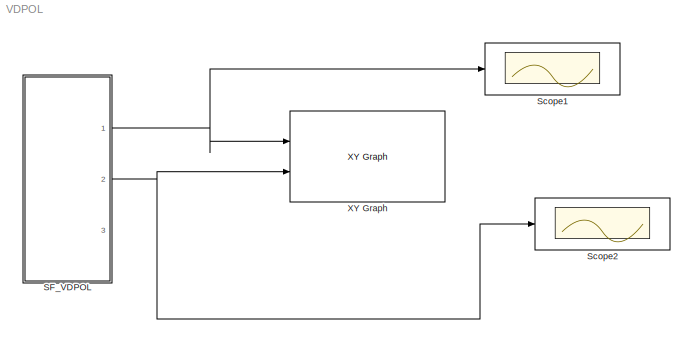
MODEL VDPOL
KIND model
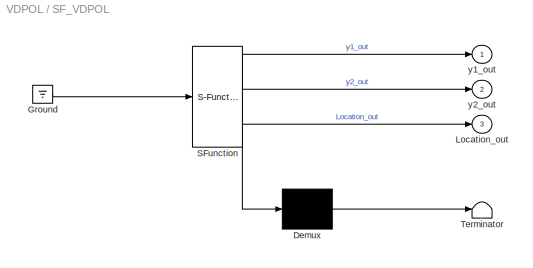
BLOCK [SubSystem] SF_VDPOL
  ErrorFcn = Stateflow.Translate.translate
  PermitHierarchicalResolution = ExplicitOnly
  Ports = [0, 3]
  RequestExecContextInheritance = off
  SFBlockType = Chart
  SID = 1
  TreatAsAtomicUnit = on
BLOCK [Demux] SF_VDPOL/ Demux 
  Outputs = 1
  Ports = [1, 1]
  SID = 1::69
BLOCK [Ground] SF_VDPOL/ Ground 
  SID = 1::71
BLOCK [S-Function] SF_VDPOL/ SFunction 
  EnableBusSupport = off
  FunctionName = sf_sfun
  PortCounts = [1 4]
  Ports = [1, 4]
  SFcnIsStateOwnerBlock = off
  SFunctionDeploymentMode = off
  SID = 1::68
  Tag = Stateflow S-Function 3
BLOCK [Terminator] SF_VDPOL/ Terminator 
  SID = 1::70
BLOCK [Outport] SF_VDPOL/Location_out
  IconDisplay = Port number
  Port = 3
  SID = 1::67
BLOCK [Outport] SF_VDPOL/y1_out
  IconDisplay = Port number
  SID = 1::65
BLOCK [Outport] SF_VDPOL/y2_out
  IconDisplay = Port number
  Port = 2
  SID = 1::66
BLOCK [Scope] Scope1
  Floating = off
  NumInputPorts = 1
  Ports = [1]
  SID = 4
  ScopeSpecificationString = C++SS(StrPVP('Location','[749, 469, 1073, 708]'),StrPVP('Open','off'),MxPVP('AxesTitles',54,'struct(''axes1'',''%<SignalLabel>'')'),MxPVP('ScopeGraphics',57,'struct(''FigureColor'',''[0.5 0.5 0.5]'',''AxesColor'',''[0 0 0]'',''AxesTickColor'',''[1 1 1]'',''LineColors'',''[1 1 0;1 0 1;0 1 1;1 0 0;0 1 0;0 0 1]'',''LineStyles'',''-|-|-|-|-|-'',''LineWidths'',''[0.5 0.5 0.5 0.5 0.5 0.5]'',''MarkerStyl...<+257ch>
BLOCK [Scope] Scope2
  Floating = off
  NumInputPorts = 1
  Ports = [1]
  SID = 6
  ScopeSpecificationString = C++SS(StrPVP('Location','[188, 365, 512, 604]'),StrPVP('Open','off'),MxPVP('AxesTitles',54,'struct(''axes1'',''%<SignalLabel>'')'),MxPVP('ScopeGraphics',57,'struct(''FigureColor'',''[0.5 0.5 0.5]'',''AxesColor'',''[0 0 0]'',''AxesTickColor'',''[1 1 1]'',''LineColors'',''[1 1 0;1 0 1;0 1 1;1 0 0;0 1 0;0 0 1]'',''LineStyles'',''-|-|-|-|-|-'',''LineWidths'',''[0.5 0.5 0.5 0.5 0.5 0.5]'',''MarkerStyle...<+224ch>
BLOCK [Reference] XY Graph  REF=simulink/Sinks/XY Graph
  Ports = [2]
  SID = 3
  SourceBlock = simulink/Sinks/XY Graph
  SourceProductBaseCode = SL
  SourceProductName = Simulink
  SourceType = XY scope.
  st = -1
  xmax = 5
  xmin = -5
  ymax = 6
  ymin = -6
LINE SF_VDPOL/ Demux :1 -> SF_VDPOL/ Terminator :1
LINE SF_VDPOL/ Ground :1 -> SF_VDPOL/ SFunction :1
LINE SF_VDPOL/ SFunction :1 -> SF_VDPOL/ Demux :1
LINE SF_VDPOL/ SFunction :2 -> SF_VDPOL/y1_out:1
LINE SF_VDPOL/ SFunction :3 -> SF_VDPOL/y2_out:1
LINE SF_VDPOL/ SFunction :4 -> SF_VDPOL/Location_out:1
NET SF_VDPOL:1 -> Scope1:1, XY Graph:1
NET SF_VDPOL:2 -> Scope2:1, XY Graph:2
note: NET lines group one-source signal fan-out (src -> all destinations, sorted); 1:1 wires keep LINE
CHART SF_VDPOL states=1 transitions=1
  STATE_LABEL 'VDPOL\\ndu:\\ny1_dot=y2;\\ny2_dot=k*(1-y1^2)*y2-y1;\\ny1_out=y1;\\ny2_out=y2;\\nLocation_out =1;'
